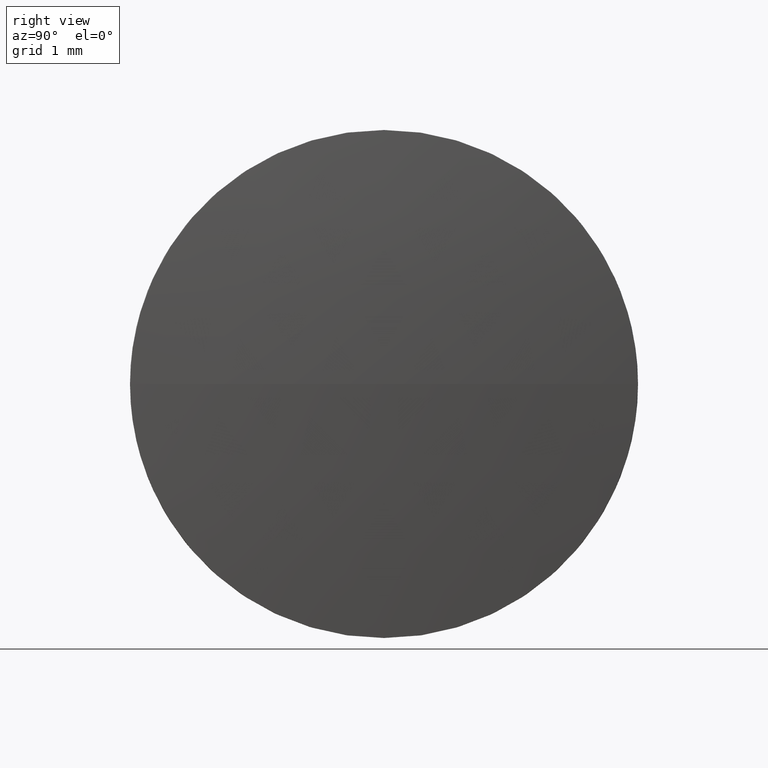
[diagram: clean part render]
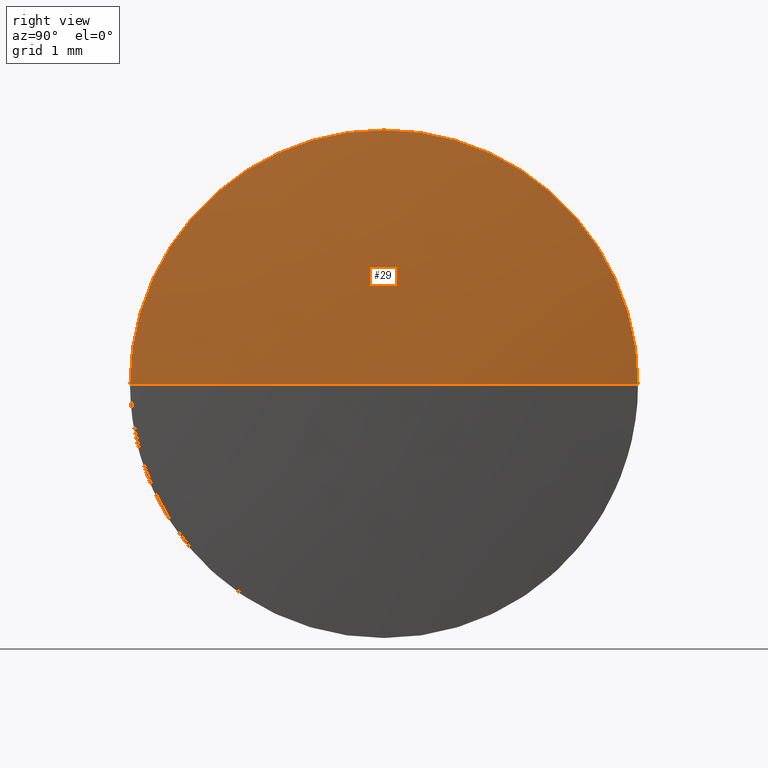
[diagram: same view with one face highlighted and labeled with its STEP entity id]
A machine part, right view. The second image highlights one B-rep face of the part: STEP entity #29.
In plain terms, the highlighted spherical surface has radius 33.15 mm.
Its self-contained STEP definition (entity closure, byte-faithful):
#4 = ORIENTED_EDGE ( 'NONE', *, *, #14, .T. ) ;
#12 = ORIENTED_EDGE ( 'NONE', *, *, #137, .F. ) ;
#14 = EDGE_CURVE ( 'NONE', #114, #170, #78, .T. ) ;
#22 = CARTESIAN_POINT ( 'NONE',  ( 1085.311526673284300, 408.8643062217854500, 0.0000000000000000000 ) ) ;
#29 = ADVANCED_FACE ( 'NONE', ( #148 ), #173, .T. ) ;
#31 = EDGE_CURVE ( 'NONE', #96, #170, #152, .T. ) ;
#34 = DIRECTION ( 'NONE',  ( -0.0000000000000000000, 0.0000000000000000000, 1.000000000000000000 ) ) ;
#38 = DIRECTION ( 'NONE',  ( 0.0000000000000000000, 1.224646799147353200E-016, -1.000000000000000000 ) ) ;
#47 = AXIS2_PLACEMENT_3D ( 'NONE', #65, #34, #109 ) ;
#52 = ORIENTED_EDGE ( 'NONE', *, *, #31, .F. ) ;
#53 = DIRECTION ( 'NONE',  ( 0.0000000000000000000, 0.0000000000000000000, 1.000000000000000000 ) ) ;
#57 = DIRECTION ( 'NONE',  ( -1.000000000000000000, -0.0000000000000000000, -0.0000000000000000000 ) ) ;
#62 = CIRCLE ( 'NONE', #153, 3.149999999999986100 ) ;
#65 = CARTESIAN_POINT ( 'NONE',  ( 1085.311526673284300, 408.8643062217854500, 0.0000000000000000000 ) ) ;
#69 = CARTESIAN_POINT ( 'NONE',  ( 1118.461526673284000, 408.8643062217854500, 0.0000000000000000000 ) ) ;
#71 = CARTESIAN_POINT ( 'NONE',  ( 1118.311526673283900, 408.8643062217863600, 0.0000000000000000000 ) ) ;
#75 = DIRECTION ( 'NONE',  ( 0.0000000000000000000, 0.0000000000000000000, 1.000000000000000000 ) ) ;
#78 = CIRCLE ( 'NONE', #47, 33.14999999999979300 ) ;
#84 = DIRECTION ( 'NONE',  ( -0.0000000000000000000, 0.0000000000000000000, -1.000000000000000000 ) ) ;
#89 = VERTEX_POINT ( 'NONE', #113 ) ;
#96 = VERTEX_POINT ( 'NONE', #112 ) ;
#109 = DIRECTION ( 'NONE',  ( 1.000000000000000000, 0.0000000000000000000, 0.0000000000000000000 ) ) ;
#110 = CARTESIAN_POINT ( 'NONE',  ( 1118.311526673283900, 412.0143062217863400, 0.0000000000000000000 ) ) ;
#112 = CARTESIAN_POINT ( 'NONE',  ( 1118.311526673283900, 408.8643062217863600, 3.149999999999986100 ) ) ;
#113 = CARTESIAN_POINT ( 'NONE',  ( 1118.311526673283900, 405.7143062217853600, -3.857637417314164200E-016 ) ) ;
#114 = VERTEX_POINT ( 'NONE', #69 ) ;
#121 = AXIS2_PLACEMENT_3D ( 'NONE', #171, #154, #53 ) ;
#131 = CIRCLE ( 'NONE', #147, 33.14999999999979300 ) ;
#133 = EDGE_LOOP ( 'NONE', ( #12, #4, #52, #167 ) ) ;
#137 = EDGE_CURVE ( 'NONE', #114, #89, #131, .T. ) ;
#140 = CARTESIAN_POINT ( 'NONE',  ( 1085.311526673284300, 408.8643062217854500, 0.0000000000000000000 ) ) ;
#145 = DIRECTION ( 'NONE',  ( 0.0000000000000000000, 1.000000000000000000, 1.224646799147353200E-016 ) ) ;
#147 = AXIS2_PLACEMENT_3D ( 'NONE', #22, #38, #145 ) ;
#148 = FACE_OUTER_BOUND ( 'NONE', #133, .T. ) ;
#152 = CIRCLE ( 'NONE', #121, 3.149999999999986100 ) ;
#153 = AXIS2_PLACEMENT_3D ( 'NONE', #71, #57, #75 ) ;
#154 = DIRECTION ( 'NONE',  ( -1.000000000000000000, -0.0000000000000000000, -0.0000000000000000000 ) ) ;
#158 = AXIS2_PLACEMENT_3D ( 'NONE', #140, #84, #181 ) ;
#167 = ORIENTED_EDGE ( 'NONE', *, *, #186, .F. ) ;
#170 = VERTEX_POINT ( 'NONE', #110 ) ;
#171 = CARTESIAN_POINT ( 'NONE',  ( 1118.311526673283900, 408.8643062217863600, 0.0000000000000000000 ) ) ;
#173 = SPHERICAL_SURFACE ( 'NONE', #158, 33.14999999999979300 ) ;
#181 = DIRECTION ( 'NONE',  ( 0.0000000000000000000, 1.000000000000000000, 0.0000000000000000000 ) ) ;
#186 = EDGE_CURVE ( 'NONE', #89, #96, #62, .T. ) ;